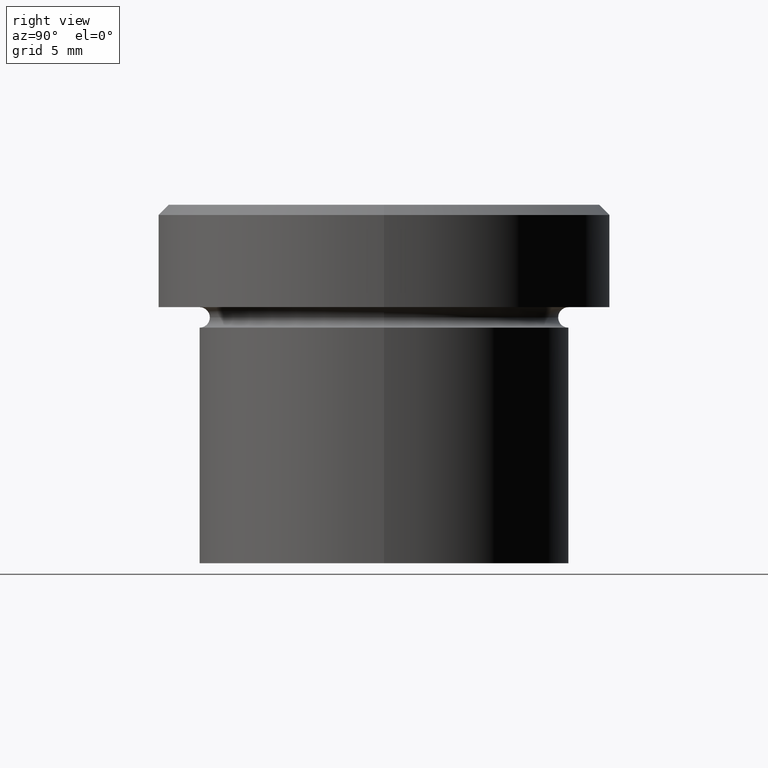
[diagram: clean part render]
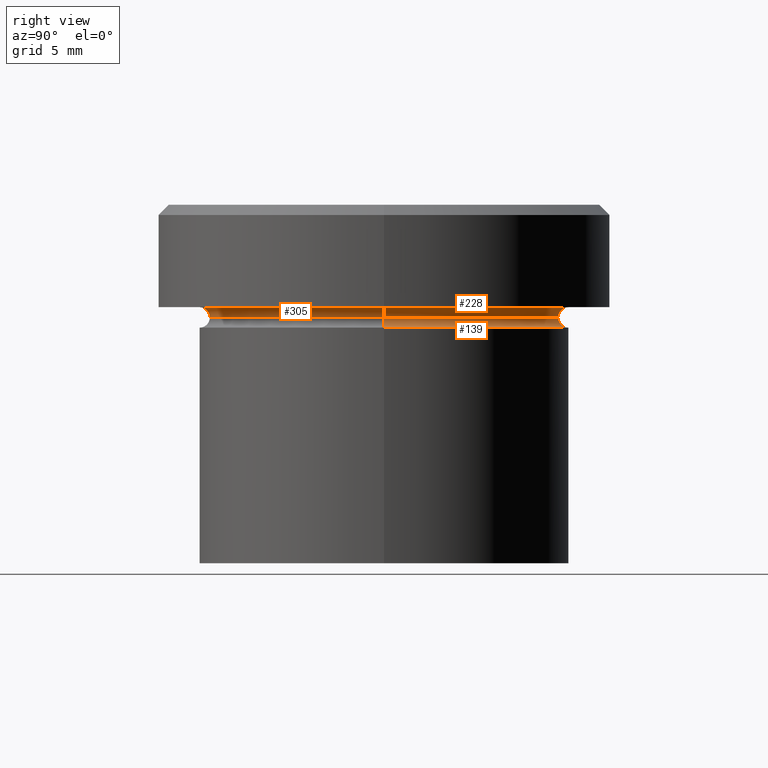
[diagram: same view with one multi-face feature highlighted, each face labeled with its STEP entity id]
A machine part, right view. The highlighted faces form ONE feature: a constant-radius fillet chain: 3 tangent blend faces with common blend radius 0.5 mm. The faces share edges in the B-rep.
Their STEP definitions:
[1] entity #228 (Torus):
#2 = AXIS2_PLACEMENT_3D ( 'NONE', #208, #265, #95 ) ;
#17 = CIRCLE ( 'NONE', #352, 0.5000000000000004441 ) ;
#28 = VERTEX_POINT ( 'NONE', #135 ) ;
#37 = CARTESIAN_POINT ( 'NONE',  ( 8.499999999999998224, 0.000000000000000000, -5.500000000000000000 ) ) ;
#64 = EDGE_CURVE ( 'NONE', #99, #121, #289, .T. ) ;
#66 = CARTESIAN_POINT ( 'NONE',  ( -9.000000000000000000, 0.000000000000000000, -5.500000000000000000 ) ) ;
#72 = DIRECTION ( 'NONE',  ( 1.000000000000000000, 0.000000000000000000, 0.000000000000000000 ) ) ;
#79 = DIRECTION ( 'NONE',  ( 0.000000000000000000, 0.000000000000000000, -1.000000000000000000 ) ) ;
#95 = DIRECTION ( 'NONE',  ( -1.000000000000000000, 0.000000000000000000, 0.000000000000000000 ) ) ;
#99 = VERTEX_POINT ( 'NONE', #37 ) ;
#104 = AXIS2_PLACEMENT_3D ( 'NONE', #232, #79, #398 ) ;
#107 = CARTESIAN_POINT ( 'NONE',  ( 0.000000000000000000, 0.000000000000000000, -5.500000000000000000 ) ) ;
#111 = FACE_OUTER_BOUND ( 'NONE', #290, .T. ) ;
#115 = AXIS2_PLACEMENT_3D ( 'NONE', #107, #349, #72 ) ;
#117 = EDGE_CURVE ( 'NONE', #121, #28, #311, .T. ) ;
#121 = VERTEX_POINT ( 'NONE', #248 ) ;
#135 = CARTESIAN_POINT ( 'NONE',  ( -9.000000000000000000, 0.000000000000000000, -4.999999999999999112 ) ) ;
#141 = DIRECTION ( 'NONE',  ( -1.224646799147353207E-16, 1.000000000000000000, 0.000000000000000000 ) ) ;
#174 = TOROIDAL_SURFACE ( 'NONE', #104, 9.000000000000000000, 0.5000000000000000000 ) ;
#202 = EDGE_CURVE ( 'NONE', #99, #246, #17, .T. ) ;
#208 = CARTESIAN_POINT ( 'NONE',  ( 0.000000000000000000, 0.000000000000000000, -5.000000000000000000 ) ) ;
#227 = CARTESIAN_POINT ( 'NONE',  ( 9.000000000000000000, 1.102182119232617714E-15, -4.999999999999999112 ) ) ;
#228 = ADVANCED_FACE ( 'NONE', ( #111 ), #174, .F. ) ;
#232 = CARTESIAN_POINT ( 'NONE',  ( 0.000000000000000000, 0.000000000000000000, -5.500000000000000000 ) ) ;
#246 = VERTEX_POINT ( 'NONE', #227 ) ;
#248 = CARTESIAN_POINT ( 'NONE',  ( -8.499999999999998224, 1.071565949253933927E-15, -5.500000000000000000 ) ) ;
#265 = DIRECTION ( 'NONE',  ( -0.000000000000000000, -0.000000000000000000, 1.000000000000000000 ) ) ;
#268 = ORIENTED_EDGE ( 'NONE', *, *, #202, .F. ) ;
#275 = DIRECTION ( 'NONE',  ( -0.000000000000000000, -1.000000000000000000, -0.000000000000000000 ) ) ;
#280 = ORIENTED_EDGE ( 'NONE', *, *, #64, .T. ) ;
#289 = CIRCLE ( 'NONE', #115, 8.499999999999998224 ) ;
#290 = EDGE_LOOP ( 'NONE', ( #268, #280, #370, #337 ) ) ;
#296 = DIRECTION ( 'NONE',  ( -1.000000000000000000, -1.224646799147353454E-16, 0.000000000000000000 ) ) ;
#311 = CIRCLE ( 'NONE', #323, 0.5000000000000004441 ) ;
#323 = AXIS2_PLACEMENT_3D ( 'NONE', #66, #275, #388 ) ;
#337 = ORIENTED_EDGE ( 'NONE', *, *, #375, .F. ) ;
#349 = DIRECTION ( 'NONE',  ( -0.000000000000000000, -0.000000000000000000, 1.000000000000000000 ) ) ;
#352 = AXIS2_PLACEMENT_3D ( 'NONE', #396, #141, #296 ) ;
#362 = CIRCLE ( 'NONE', #2, 9.000000000000000000 ) ;
#370 = ORIENTED_EDGE ( 'NONE', *, *, #117, .T. ) ;
#375 = EDGE_CURVE ( 'NONE', #246, #28, #362, .T. ) ;
#388 = DIRECTION ( 'NONE',  ( 0.000000000000000000, 0.000000000000000000, -1.000000000000000000 ) ) ;
#396 = CARTESIAN_POINT ( 'NONE',  ( 9.000000000000000000, 1.102182119232617714E-15, -5.500000000000000000 ) ) ;
#398 = DIRECTION ( 'NONE',  ( -1.000000000000000000, 0.000000000000000000, 0.000000000000000000 ) ) ;
[2] entity #139 (Torus):
#8 = DIRECTION ( 'NONE',  ( 0.000000000000000000, 0.000000000000000000, -1.000000000000000000 ) ) ;
#18 = DIRECTION ( 'NONE',  ( -0.000000000000000000, -0.000000000000000000, 1.000000000000000000 ) ) ;
#37 = CARTESIAN_POINT ( 'NONE',  ( 8.499999999999998224, 0.000000000000000000, -5.500000000000000000 ) ) ;
#42 = CIRCLE ( 'NONE', #266, 9.000000000000000000 ) ;
#45 = DIRECTION ( 'NONE',  ( -1.000000000000000000, 1.224646799147353454E-16, 0.000000000000000000 ) ) ;
#64 = EDGE_CURVE ( 'NONE', #99, #121, #289, .T. ) ;
#71 = ORIENTED_EDGE ( 'NONE', *, *, #64, .F. ) ;
#72 = DIRECTION ( 'NONE',  ( 1.000000000000000000, 0.000000000000000000, 0.000000000000000000 ) ) ;
#99 = VERTEX_POINT ( 'NONE', #37 ) ;
#107 = CARTESIAN_POINT ( 'NONE',  ( 0.000000000000000000, 0.000000000000000000, -5.500000000000000000 ) ) ;
#115 = AXIS2_PLACEMENT_3D ( 'NONE', #107, #349, #72 ) ;
#121 = VERTEX_POINT ( 'NONE', #248 ) ;
#124 = ORIENTED_EDGE ( 'NONE', *, *, #233, .F. ) ;
#126 = VERTEX_POINT ( 'NONE', #322 ) ;
#139 = ADVANCED_FACE ( 'NONE', ( #409 ), #254, .F. ) ;
#146 = DIRECTION ( 'NONE',  ( 1.000000000000000000, 0.000000000000000000, 0.000000000000000000 ) ) ;
#154 = EDGE_CURVE ( 'NONE', #99, #346, #156, .T. ) ;
#156 = CIRCLE ( 'NONE', #220, 0.5000000000000004441 ) ;
#190 = CARTESIAN_POINT ( 'NONE',  ( 0.000000000000000000, 0.000000000000000000, -5.500000000000000000 ) ) ;
#205 = DIRECTION ( 'NONE',  ( 1.224646799147353207E-16, 1.000000000000000000, 0.000000000000000000 ) ) ;
#212 = ORIENTED_EDGE ( 'NONE', *, *, #154, .T. ) ;
#220 = AXIS2_PLACEMENT_3D ( 'NONE', #326, #285, #8 ) ;
#226 = CARTESIAN_POINT ( 'NONE',  ( -9.000000000000000000, 1.102182119232617714E-15, -5.500000000000000000 ) ) ;
#233 = EDGE_CURVE ( 'NONE', #121, #126, #245, .T. ) ;
#238 = EDGE_LOOP ( 'NONE', ( #124, #71, #212, #402 ) ) ;
#243 = DIRECTION ( 'NONE',  ( -0.000000000000000000, -0.000000000000000000, 1.000000000000000000 ) ) ;
#245 = CIRCLE ( 'NONE', #366, 0.5000000000000004441 ) ;
#248 = CARTESIAN_POINT ( 'NONE',  ( -8.499999999999998224, 1.071565949253933927E-15, -5.500000000000000000 ) ) ;
#254 = TOROIDAL_SURFACE ( 'NONE', #378, 9.000000000000000000, 0.5000000000000000000 ) ;
#266 = AXIS2_PLACEMENT_3D ( 'NONE', #339, #18, #146 ) ;
#285 = DIRECTION ( 'NONE',  ( 0.000000000000000000, -1.000000000000000000, 0.000000000000000000 ) ) ;
#289 = CIRCLE ( 'NONE', #115, 8.499999999999998224 ) ;
#321 = DIRECTION ( 'NONE',  ( 1.000000000000000000, 0.000000000000000000, 0.000000000000000000 ) ) ;
#322 = CARTESIAN_POINT ( 'NONE',  ( -9.000000000000000000, 1.102182119232617714E-15, -6.000000000000000000 ) ) ;
#326 = CARTESIAN_POINT ( 'NONE',  ( 9.000000000000000000, 0.000000000000000000, -5.500000000000000000 ) ) ;
#339 = CARTESIAN_POINT ( 'NONE',  ( 0.000000000000000000, 0.000000000000000000, -6.000000000000000000 ) ) ;
#342 = EDGE_CURVE ( 'NONE', #346, #126, #42, .T. ) ;
#346 = VERTEX_POINT ( 'NONE', #365 ) ;
#349 = DIRECTION ( 'NONE',  ( -0.000000000000000000, -0.000000000000000000, 1.000000000000000000 ) ) ;
#365 = CARTESIAN_POINT ( 'NONE',  ( 9.000000000000000000, 0.000000000000000000, -6.000000000000000000 ) ) ;
#366 = AXIS2_PLACEMENT_3D ( 'NONE', #226, #205, #45 ) ;
#378 = AXIS2_PLACEMENT_3D ( 'NONE', #190, #243, #321 ) ;
#402 = ORIENTED_EDGE ( 'NONE', *, *, #342, .T. ) ;
#409 = FACE_OUTER_BOUND ( 'NONE', #238, .T. ) ;
[3] entity #305 (Torus):
#1 = EDGE_CURVE ( 'NONE', #28, #246, #155, .T. ) ;
#10 = CARTESIAN_POINT ( 'NONE',  ( 0.000000000000000000, 0.000000000000000000, -5.000000000000000000 ) ) ;
#17 = CIRCLE ( 'NONE', #352, 0.5000000000000004441 ) ;
#28 = VERTEX_POINT ( 'NONE', #135 ) ;
#33 = ORIENTED_EDGE ( 'NONE', *, *, #1, .F. ) ;
#36 = CIRCLE ( 'NONE', #237, 8.499999999999998224 ) ;
#37 = CARTESIAN_POINT ( 'NONE',  ( 8.499999999999998224, 0.000000000000000000, -5.500000000000000000 ) ) ;
#48 = DIRECTION ( 'NONE',  ( -0.000000000000000000, -0.000000000000000000, 1.000000000000000000 ) ) ;
#56 = DIRECTION ( 'NONE',  ( -1.000000000000000000, 0.000000000000000000, 0.000000000000000000 ) ) ;
#60 = TOROIDAL_SURFACE ( 'NONE', #213, 9.000000000000000000, 0.5000000000000000000 ) ;
#61 = DIRECTION ( 'NONE',  ( 0.000000000000000000, 0.000000000000000000, -1.000000000000000000 ) ) ;
#66 = CARTESIAN_POINT ( 'NONE',  ( -9.000000000000000000, 0.000000000000000000, -5.500000000000000000 ) ) ;
#99 = VERTEX_POINT ( 'NONE', #37 ) ;
#117 = EDGE_CURVE ( 'NONE', #121, #28, #311, .T. ) ;
#121 = VERTEX_POINT ( 'NONE', #248 ) ;
#135 = CARTESIAN_POINT ( 'NONE',  ( -9.000000000000000000, 0.000000000000000000, -4.999999999999999112 ) ) ;
#141 = DIRECTION ( 'NONE',  ( -1.224646799147353207E-16, 1.000000000000000000, 0.000000000000000000 ) ) ;
#150 = CARTESIAN_POINT ( 'NONE',  ( 0.000000000000000000, 0.000000000000000000, -5.500000000000000000 ) ) ;
#155 = CIRCLE ( 'NONE', #242, 9.000000000000000000 ) ;
#157 = EDGE_LOOP ( 'NONE', ( #376, #383, #33, #269 ) ) ;
#175 = DIRECTION ( 'NONE',  ( 1.000000000000000000, 0.000000000000000000, 0.000000000000000000 ) ) ;
#202 = EDGE_CURVE ( 'NONE', #99, #246, #17, .T. ) ;
#213 = AXIS2_PLACEMENT_3D ( 'NONE', #150, #61, #56 ) ;
#227 = CARTESIAN_POINT ( 'NONE',  ( 9.000000000000000000, 1.102182119232617714E-15, -4.999999999999999112 ) ) ;
#237 = AXIS2_PLACEMENT_3D ( 'NONE', #334, #48, #175 ) ;
#242 = AXIS2_PLACEMENT_3D ( 'NONE', #10, #252, #385 ) ;
#246 = VERTEX_POINT ( 'NONE', #227 ) ;
#247 = EDGE_CURVE ( 'NONE', #121, #99, #36, .T. ) ;
#248 = CARTESIAN_POINT ( 'NONE',  ( -8.499999999999998224, 1.071565949253933927E-15, -5.500000000000000000 ) ) ;
#252 = DIRECTION ( 'NONE',  ( -0.000000000000000000, -0.000000000000000000, 1.000000000000000000 ) ) ;
#269 = ORIENTED_EDGE ( 'NONE', *, *, #117, .F. ) ;
#275 = DIRECTION ( 'NONE',  ( -0.000000000000000000, -1.000000000000000000, -0.000000000000000000 ) ) ;
#296 = DIRECTION ( 'NONE',  ( -1.000000000000000000, -1.224646799147353454E-16, 0.000000000000000000 ) ) ;
#305 = ADVANCED_FACE ( 'NONE', ( #315 ), #60, .F. ) ;
#311 = CIRCLE ( 'NONE', #323, 0.5000000000000004441 ) ;
#315 = FACE_OUTER_BOUND ( 'NONE', #157, .T. ) ;
#323 = AXIS2_PLACEMENT_3D ( 'NONE', #66, #275, #388 ) ;
#334 = CARTESIAN_POINT ( 'NONE',  ( 0.000000000000000000, 0.000000000000000000, -5.500000000000000000 ) ) ;
#352 = AXIS2_PLACEMENT_3D ( 'NONE', #396, #141, #296 ) ;
#376 = ORIENTED_EDGE ( 'NONE', *, *, #247, .T. ) ;
#383 = ORIENTED_EDGE ( 'NONE', *, *, #202, .T. ) ;
#385 = DIRECTION ( 'NONE',  ( -1.000000000000000000, 0.000000000000000000, 0.000000000000000000 ) ) ;
#388 = DIRECTION ( 'NONE',  ( 0.000000000000000000, 0.000000000000000000, -1.000000000000000000 ) ) ;
#396 = CARTESIAN_POINT ( 'NONE',  ( 9.000000000000000000, 1.102182119232617714E-15, -5.500000000000000000 ) ) ;